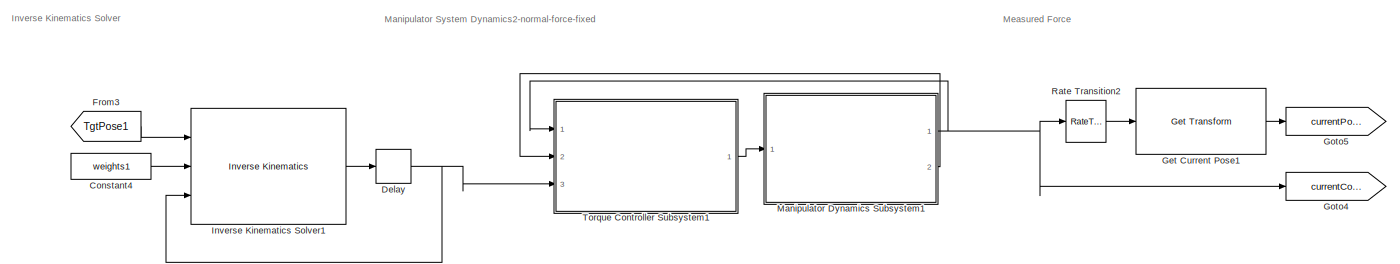
[diagram: root canvas - part 1/3, top right region]
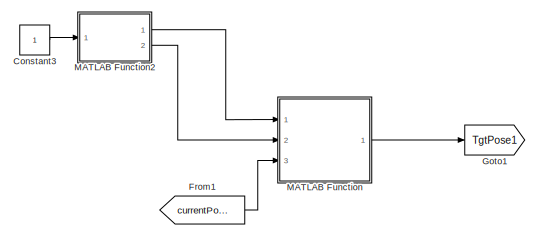
[diagram: root canvas - part 2/3, middle left region]
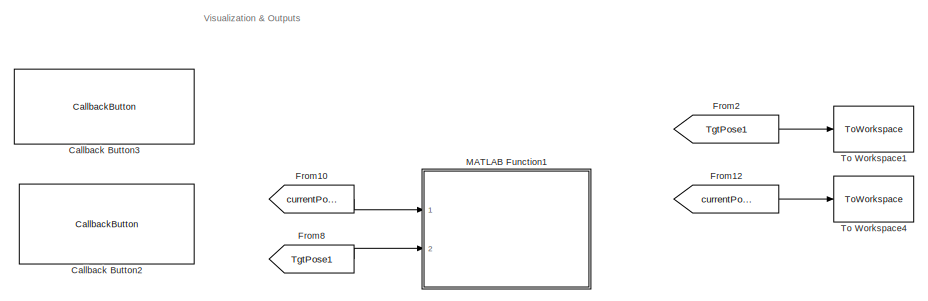
[diagram: root canvas - part 3/3, bottom center region]
MODEL slx_4688b18ca03d
KIND model
CONFIG AbsTol = auto
CONFIG EnableMultiTasking = off
CONFIG FixedStep = Ts
CONFIG MaxStep = auto
CONFIG MinStep = auto
CONFIG PostLoadFcn = robot=importrobot('demo.urdf');\nrobot.DataFormat = 'column';\n\nI = imread('coins.png');\nimageOrigin = [40,20,0.08];\nscale = .15;\n
CONFIG RelTol = 1e-3
CONFIG SampleTimeConstraint = Unconstrained
CONFIG Solver = ode3
CONFIG SolverName = ode3
CONFIG StartTime = 0.0
CONFIG StopTime = 10
WORKSPACE source: mxarray member
WORKSPACE I = [49 47 48 48 48 48 48 51 50 51 50 47 ... (73800 elements, 246x300)]
WORKSPACE Ts = 0.01
WORKSPACE filterConst = 0.08
WORKSPACE force_range = [0.8 0.9]
WORKSPACE imageOrigin = [0.4 0.2 0.08]
WORKSPACE initTargetPose = [-1 0 -1.22464679915e-16 0 0 1 0 0 1.22464679915e-16 0 -1 0 ... (16 elements, 4x4)]
WORKSPACE q0 = [0.422405030154 0 -1.22880122285 0]
WORKSPACE robot: robotics.RigidBodyTree (value not decoded)
WORKSPACE scale = 0.0015
WORKSPACE wayPoints = [0 0 0 0 0 0 0 0 0 0 0 0 ... (1212 elements, 202x6)]
WORKSPACE weights = [1 1 1 1]
WORKSPACE weights1 = [1 1 1 1 1 1]
BLOCK [CallbackButton] Callback Button2
  ButtonText = Show Image Processing Used for Waypoint Generation
  ClickFcn = f1 = figure(1);\nf1.Position = [158 253 953 335];\nI1 = imread('coins.png');\nI2 = imread('coinBoundaries.png');\n\nsubplot(1,2,1)\nimshow(I1, 'Border', 'tight')\ntitle('Original Image')\n\nsubplot(1,2,2)\nimshow(I2, 'Border', 'tight')\ntitle('Processed Image with Boundary Detection')
BLOCK [CallbackButton] Callback Button3
  ButtonText = Visualize Model Output with Manipulator Mesh
  ClickFcn = if exist('jointData1', 'var') \n    exampleHelperVisualizeIK(I, jointData1, poseData1, sawyer, imageOrigin, scale);\nelse\n    sim(gcs)\n    exampleHelperVisualizeIK(I, jointData1, poseData1, sawyer, imageOrigin, scale);\nend
BLOCK [Constant] Constant3
BLOCK [Constant] Constant4
  Value = weights1
BLOCK [Delay] Delay
  DelayLength = 1
  InitialCondition = 0
  InputPortMap = u0
  Ports = [1, 1]
BLOCK [From] From1
  GotoTag = currentPose1
BLOCK [From] From10
  GotoTag = currentPose1
BLOCK [From] From12
  GotoTag = currentPose1
BLOCK [From] From2
  GotoTag = TgtPose1
  TagVisibility = global
BLOCK [From] From3
  GotoTag = TgtPose1
  TagVisibility = global
BLOCK [From] From8
  GotoTag = TgtPose1
  TagVisibility = global
BLOCK [Reference] Get Current Pose1  REF=robotmaniplib/Get Transform
  Ports = [1, 1]
  SourceBlock = robotmaniplib/Get Transform
  SourceProductBaseCode = RO
  SourceProductName = Robotics System Toolbox
  SourceType = Get Transform
BLOCK [Goto] Goto1
  GotoTag = TgtPose1
  TagVisibility = global
BLOCK [Goto] Goto4
  GotoTag = currentConfig1
BLOCK [Goto] Goto5
  GotoTag = currentPose1
BLOCK [Reference] Inverse Kinematics Solver1  REF=robotmaniplib/Inverse Kinematics
  Ports = [3, 1]
  SourceBlock = robotmaniplib/Inverse Kinematics
  SourceProductBaseCode = RO
  SourceProductName = Robotics System Toolbox
  SourceType = Inverse Kinematics
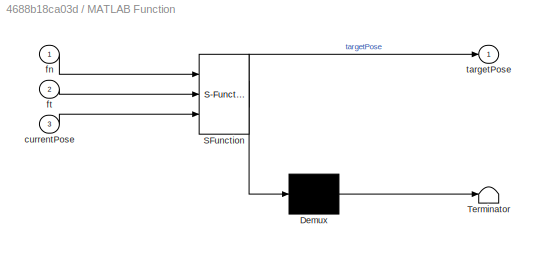
BLOCK [SubSystem] MATLAB Function
  ErrorFcn = Stateflow.Translate.translate
  PermitHierarchicalResolution = ExplicitOnly
  Ports = [3, 1]
  RequestExecContextInheritance = off
  SFBlockType = MATLAB Function
  TreatAsAtomicUnit = on
BLOCK [Demux] MATLAB Function/ Demux 
  Outputs = 1
  Ports = [1, 1]
BLOCK [S-Function] MATLAB Function/ SFunction 
  EnableBusSupport = on
  FunctionName = sf_sfun
  PortCounts = [3 2]
  Ports = [3, 2]
  SFcnIsStateOwnerBlock = off
  SFunctionDeploymentMode = off
  Tag = Stateflow S-Function 2
BLOCK [Terminator] MATLAB Function/ Terminator 
BLOCK [Inport] MATLAB Function/currentPose
  IconDisplay = Port number
  Port = 3
BLOCK [Inport] MATLAB Function/fn
  IconDisplay = Port number
BLOCK [Inport] MATLAB Function/ft
  IconDisplay = Port number
  Port = 2
BLOCK [Outport] MATLAB Function/targetPose
  IconDisplay = Port number
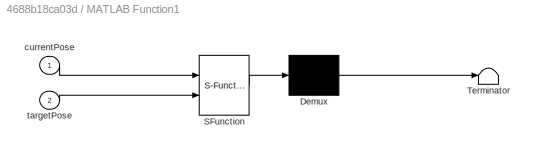
BLOCK [SubSystem] MATLAB Function1
  ErrorFcn = Stateflow.Translate.translate
  PermitHierarchicalResolution = ExplicitOnly
  Ports = [2]
  RequestExecContextInheritance = off
  SFBlockType = MATLAB Function
  SystemSampleTime = .1
  TreatAsAtomicUnit = on
BLOCK [Demux] MATLAB Function1/ Demux 
  Outputs = 1
  Ports = [1, 1]
BLOCK [S-Function] MATLAB Function1/ SFunction 
  EnableBusSupport = on
  FunctionName = sf_sfun
  PortCounts = [2 1]
  Ports = [2, 1]
  SFcnIsStateOwnerBlock = off
  SFunctionDeploymentMode = off
  Tag = Stateflow S-Function 4
BLOCK [Terminator] MATLAB Function1/ Terminator 
BLOCK [Inport] MATLAB Function1/currentPose
  IconDisplay = Port number
BLOCK [Inport] MATLAB Function1/targetPose
  IconDisplay = Port number
  Port = 2
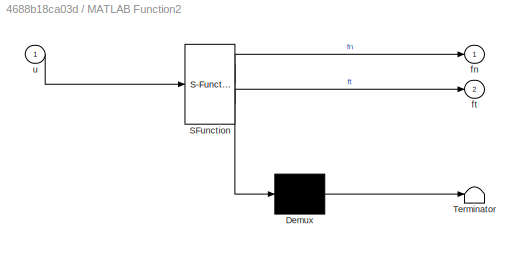
BLOCK [SubSystem] MATLAB Function2
  ErrorFcn = Stateflow.Translate.translate
  PermitHierarchicalResolution = ExplicitOnly
  Ports = [1, 2]
  RequestExecContextInheritance = off
  SFBlockType = MATLAB Function
  TreatAsAtomicUnit = on
BLOCK [Demux] MATLAB Function2/ Demux 
  Outputs = 1
  Ports = [1, 1]
BLOCK [S-Function] MATLAB Function2/ SFunction 
  EnableBusSupport = on
  FunctionName = sf_sfun
  PortCounts = [1 3]
  Ports = [1, 3]
  SFcnIsStateOwnerBlock = off
  SFunctionDeploymentMode = off
  Tag = Stateflow S-Function 1
BLOCK [Terminator] MATLAB Function2/ Terminator 
BLOCK [Outport] MATLAB Function2/fn
  IconDisplay = Port number
  VectorParamsAs1DForOutWhenUnconnected = off
BLOCK [Outport] MATLAB Function2/ft
  IconDisplay = Port number
  Port = 2
BLOCK [Inport] MATLAB Function2/u
  IconDisplay = Port number
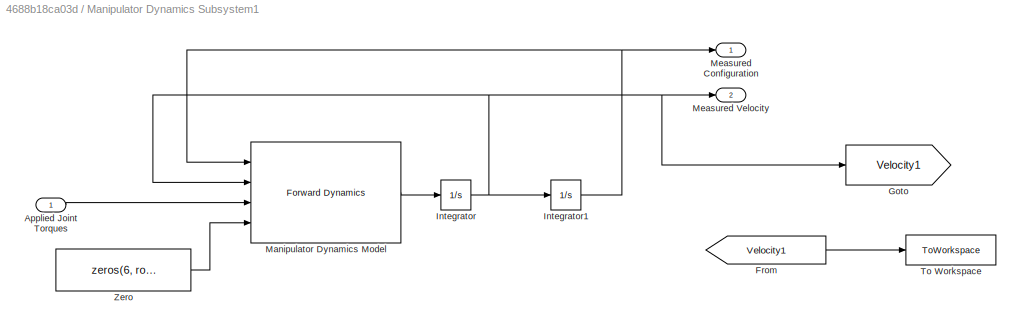
BLOCK [SubSystem] Manipulator Dynamics Subsystem1
  Ports = [1, 2]
  RequestExecContextInheritance = off
BLOCK [Inport] Manipulator Dynamics Subsystem1/Applied Joint Torques
  IconDisplay = Port number
BLOCK [From] Manipulator Dynamics Subsystem1/From
  GotoTag = Velocity1
BLOCK [Goto] Manipulator Dynamics Subsystem1/Goto
  GotoTag = Velocity1
BLOCK [Integrator] Manipulator Dynamics Subsystem1/Integrator
  Ports = [1, 1]
BLOCK [Integrator] Manipulator Dynamics Subsystem1/Integrator1
  InitialCondition = q0
  Ports = [1, 1]
BLOCK [Reference] Manipulator Dynamics Subsystem1/Manipulator Dynamics Model  REF=robotmaniplib/Forward Dynamics
  Ports = [4, 1]
  SourceBlock = robotmaniplib/Forward Dynamics
  SourceProductBaseCode = RO
  SourceProductName = Robotics System Toolbox
  SourceType = Forward Dynamics
BLOCK [Outport] Manipulator Dynamics Subsystem1/Measured Configuration
  IconDisplay = Port number
  VectorParamsAs1DForOutWhenUnconnected = off
BLOCK [Outport] Manipulator Dynamics Subsystem1/Measured Velocity
  IconDisplay = Port number
  Port = 2
  VectorParamsAs1DForOutWhenUnconnected = off
BLOCK [ToWorkspace] Manipulator Dynamics Subsystem1/To Workspace
  FixptAsFi = on
  MaxDataPoints = inf
  Ports = [1]
  SampleTime = -1
  SaveFormat = Timeseries
  VariableName = Velocity
BLOCK [Constant] Manipulator Dynamics Subsystem1/Zero
  OutDataTypeStr = Inherit: Inherit via back propagation
  Value = zeros(6, robot.NumBodies)
BLOCK [RateTransition] Rate Transition2
BLOCK [ToWorkspace] To Workspace1
  FixptAsFi = on
  MaxDataPoints = inf
  Ports = [1]
  SampleTime = -1
  VariableName = poseData2
BLOCK [ToWorkspace] To Workspace4
  FixptAsFi = on
  MaxDataPoints = inf
  Ports = [1]
  SampleTime = -1
  VariableName = poseData1
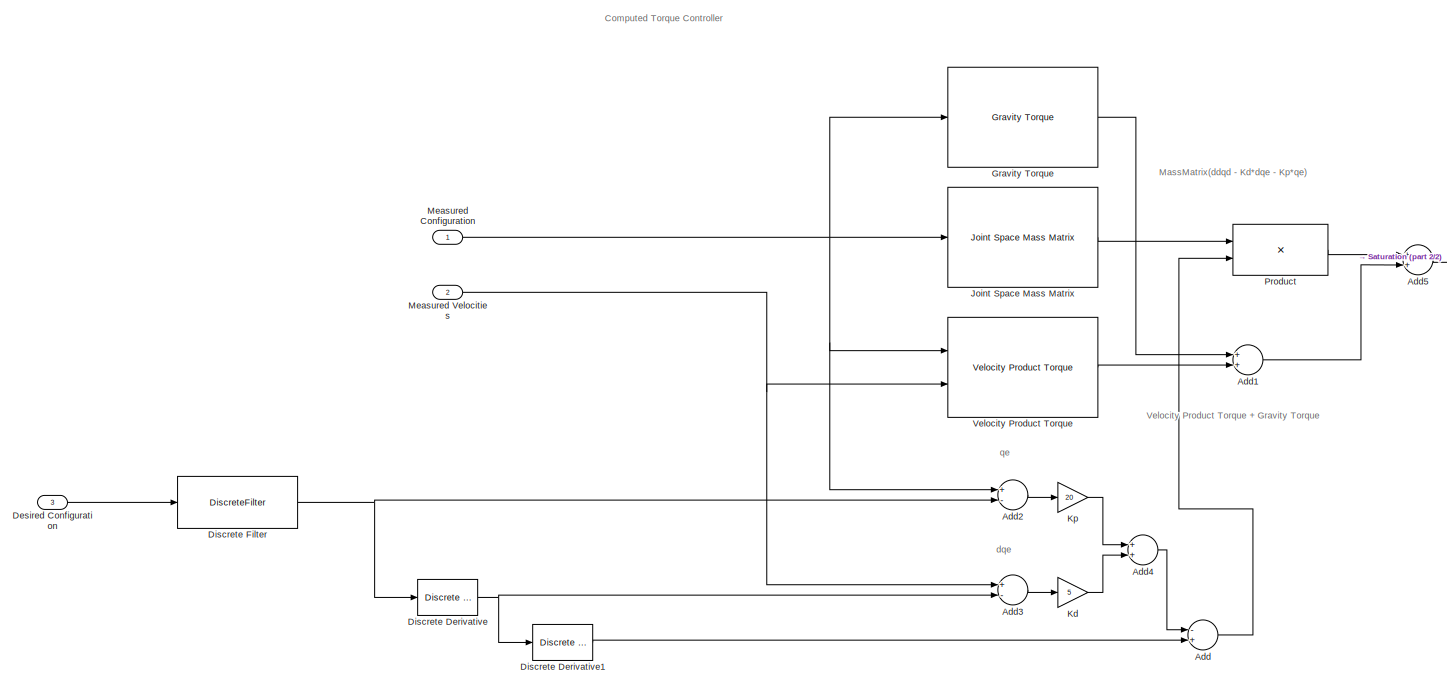
[diagram: Torque Controller Subsystem1 - part 1/2, most of the canvas]
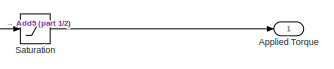
[diagram: Torque Controller Subsystem1 - part 2/2, middle right region]
BLOCK [SubSystem] Torque Controller Subsystem1
  Ports = [3, 1]
  RequestExecContextInheritance = off
BLOCK [Sum] Torque Controller Subsystem1/Add
  InputSameDT = off
  Inputs = -+
  OutDataTypeStr = Inherit: Inherit via internal rule
  Ports = [2, 1]
  SaturateOnIntegerOverflow = off
BLOCK [Sum] Torque Controller Subsystem1/Add1
  InputSameDT = off
  OutDataTypeStr = Inherit: Inherit via internal rule
  Ports = [2, 1]
  SaturateOnIntegerOverflow = off
BLOCK [Sum] Torque Controller Subsystem1/Add2
  InputSameDT = off
  Inputs = +-
  OutDataTypeStr = Inherit: Inherit via internal rule
  Ports = [2, 1]
  SaturateOnIntegerOverflow = off
BLOCK [Sum] Torque Controller Subsystem1/Add3
  InputSameDT = off
  Inputs = +-
  OutDataTypeStr = Inherit: Inherit via internal rule
  Ports = [2, 1]
  SaturateOnIntegerOverflow = off
BLOCK [Sum] Torque Controller Subsystem1/Add4
  InputSameDT = off
  OutDataTypeStr = Inherit: Inherit via internal rule
  Ports = [2, 1]
  SaturateOnIntegerOverflow = off
BLOCK [Sum] Torque Controller Subsystem1/Add5
  InputSameDT = off
  OutDataTypeStr = Inherit: Inherit via internal rule
  Ports = [2, 1]
  SaturateOnIntegerOverflow = off
BLOCK [Outport] Torque Controller Subsystem1/Applied Torque
  IconDisplay = Port number
  VectorParamsAs1DForOutWhenUnconnected = off
BLOCK [Inport] Torque Controller Subsystem1/Desired Configuration
  IconDisplay = Port number
  Port = 3
BLOCK [Reference] Torque Controller Subsystem1/Discrete Derivative  REF=simulink/Discrete/Discrete Derivative
  Ports = [1, 1]
  SourceBlock = simulink/Discrete/Discrete Derivative
  SourceProductBaseCode = SL
  SourceProductName = Simulink
  SourceType = Discrete Derivative
BLOCK [Reference] Torque Controller Subsystem1/Discrete Derivative1  REF=simulink/Discrete/Discrete Derivative
  Ports = [1, 1]
  SourceBlock = simulink/Discrete/Discrete Derivative
  SourceProductBaseCode = SL
  SourceProductName = Simulink
  SourceType = Discrete Derivative
BLOCK [DiscreteFilter] Torque Controller Subsystem1/Discrete Filter
  Denominator = [1]
  InitialStates = repmat(q0',19,1)
  InputPortMap = u0
  Numerator = ones(1,20)*1/20
  Ports = [1, 1]
BLOCK [Reference] Torque Controller Subsystem1/Gravity Torque  REF=robotmaniplib/Gravity Torque
  Ports = [1, 1]
  SourceBlock = robotmaniplib/Gravity Torque
  SourceProductBaseCode = RO
  SourceProductName = Robotics System Toolbox
  SourceType = Gravity Torque
BLOCK [Reference] Torque Controller Subsystem1/Joint Space Mass Matrix  REF=robotmaniplib/Joint Space Mass Matrix
  Ports = [1, 1]
  SourceBlock = robotmaniplib/Joint Space Mass Matrix
  SourceProductBaseCode = RO
  SourceProductName = Robotics System Toolbox
  SourceType = Joint Space Mass Matrix
BLOCK [Gain] Torque Controller Subsystem1/Kd
  Gain = 5
  OutDataTypeStr = Inherit: Inherit via internal rule
  ParamDataTypeStr = Inherit: Inherit via internal rule
  SaturateOnIntegerOverflow = off
BLOCK [Gain] Torque Controller Subsystem1/Kp
  Gain = 20
  OutDataTypeStr = Inherit: Inherit via internal rule
  ParamDataTypeStr = Inherit: Inherit via internal rule
  SaturateOnIntegerOverflow = off
BLOCK [Inport] Torque Controller Subsystem1/Measured Configuration
  IconDisplay = Port number
BLOCK [Inport] Torque Controller Subsystem1/Measured Velocities
  IconDisplay = Port number
  Port = 2
BLOCK [Product] Torque Controller Subsystem1/Product
  InputSameDT = off
  Multiplication = Matrix(*)
  OutDataTypeStr = Inherit: Inherit via internal rule
  Ports = [2, 1]
  RndMeth = Floor
  SaturateOnIntegerOverflow = off
BLOCK [Saturate] Torque Controller Subsystem1/Saturation
  InputPortMap = u0
  LowerLimit = -100
  Ports = [1, 1]
  UpperLimit = 100
BLOCK [Reference] Torque Controller Subsystem1/Velocity Product Torque  REF=robotmaniplib/Velocity Product Torque
  Ports = [2, 1]
  SourceBlock = robotmaniplib/Velocity Product Torque
  SourceProductBaseCode = RO
  SourceProductName = Robotics System Toolbox
  SourceType = Velocity Product Torque
ANNOTATION (root): Inverse Kinematics Solver
ANNOTATION (root): Manipulator System Dynamics2-normal-force-fixed
ANNOTATION (root): Measured Force
ANNOTATION (root): Visualization & Outputs
ANNOTATION Torque Controller Subsystem1: qe
ANNOTATION Torque Controller Subsystem1: dqe
ANNOTATION Torque Controller Subsystem1: MassMatrix(ddqd - Kd*dqe - Kp*qe)
ANNOTATION Torque Controller Subsystem1: Velocity Product Torque + Gravity Torque
ANNOTATION Torque Controller Subsystem1: Computed Torque Controller
LINE Constant3:1 -> MATLAB Function2:1
LINE Constant4:1 -> Inverse Kinematics Solver1:2
NET Delay:1 -> Inverse Kinematics Solver1:3, Torque Controller Subsystem1:3
LINE From10:1 -> MATLAB Function1:1
LINE From12:1 -> To Workspace4:1
LINE From1:1 -> MATLAB Function:3
LINE From2:1 -> To Workspace1:1
LINE From3:1 -> Inverse Kinematics Solver1:1
LINE From8:1 -> MATLAB Function1:2
LINE Get Current Pose1:1 -> Goto5:1
LINE Inverse Kinematics Solver1:1 -> Delay:1
LINE MATLAB Function2:1 -> MATLAB Function:1
LINE MATLAB Function2:2 -> MATLAB Function:2
LINE MATLAB Function:1 -> Goto1:1
LINE Manipulator Dynamics Subsystem1/Applied Joint Torques:1 -> Manipulator Dynamics Subsystem1/Manipulator Dynamics Model:3
LINE Manipulator Dynamics Subsystem1/From:1 -> Manipulator Dynamics Subsystem1/To Workspace:1
NET Manipulator Dynamics Subsystem1/Integrator1:1 -> Manipulator Dynamics Subsystem1/Manipulator Dynamics Model:1, Manipulator Dynamics Subsystem1/Measured Configuration:1
NET Manipulator Dynamics Subsystem1/Integrator:1 -> Manipulator Dynamics Subsystem1/Goto:1, Manipulator Dynamics Subsystem1/Integrator1:1, Manipulator Dynamics Subsystem1/Manipulator Dynamics Model:2, Manipulator Dynamics Subsystem1/Measured Velocity:1
LINE Manipulator Dynamics Subsystem1/Manipulator Dynamics Model:1 -> Manipulator Dynamics Subsystem1/Integrator:1
LINE Manipulator Dynamics Subsystem1/Zero:1 -> Manipulator Dynamics Subsystem1/Manipulator Dynamics Model:4
NET Manipulator Dynamics Subsystem1:1 -> Goto4:1, Rate Transition2:1, Torque Controller Subsystem1:1
LINE Manipulator Dynamics Subsystem1:2 -> Torque Controller Subsystem1:2
LINE Rate Transition2:1 -> Get Current Pose1:1
LINE Torque Controller Subsystem1/Add1:1 -> Torque Controller Subsystem1/Add5:2
LINE Torque Controller Subsystem1/Add2:1 -> Torque Controller Subsystem1/Kp:1
LINE Torque Controller Subsystem1/Add3:1 -> Torque Controller Subsystem1/Kd:1
LINE Torque Controller Subsystem1/Add4:1 -> Torque Controller Subsystem1/Add:1
LINE Torque Controller Subsystem1/Add5:1 -> Torque Controller Subsystem1/Saturation:1
LINE Torque Controller Subsystem1/Add:1 -> Torque Controller Subsystem1/Product:2
LINE Torque Controller Subsystem1/Desired Configuration:1 -> Torque Controller Subsystem1/Discrete Filter:1
LINE Torque Controller Subsystem1/Discrete Derivative1:1 -> Torque Controller Subsystem1/Add:2
NET Torque Controller Subsystem1/Discrete Derivative:1 -> Torque Controller Subsystem1/Add3:2, Torque Controller Subsystem1/Discrete Derivative1:1
NET Torque Controller Subsystem1/Discrete Filter:1 -> Torque Controller Subsystem1/Add2:2, Torque Controller Subsystem1/Discrete Derivative:1
LINE Torque Controller Subsystem1/Gravity Torque:1 -> Torque Controller Subsystem1/Add1:1
LINE Torque Controller Subsystem1/Joint Space Mass Matrix:1 -> Torque Controller Subsystem1/Product:1
LINE Torque Controller Subsystem1/Kd:1 -> Torque Controller Subsystem1/Add4:2
LINE Torque Controller Subsystem1/Kp:1 -> Torque Controller Subsystem1/Add4:1
NET Torque Controller Subsystem1/Measured Configuration:1 -> Torque Controller Subsystem1/Add2:1, Torque Controller Subsystem1/Gravity Torque:1, Torque Controller Subsystem1/Joint Space Mass Matrix:1, Torque Controller Subsystem1/Velocity Product Torque:1
NET Torque Controller Subsystem1/Measured Velocities:1 -> Torque Controller Subsystem1/Add3:1, Torque Controller Subsystem1/Velocity Product Torque:2
LINE Torque Controller Subsystem1/Product:1 -> Torque Controller Subsystem1/Add5:1
LINE Torque Controller Subsystem1/Saturation:1 -> Torque Controller Subsystem1/Applied Torque:1
LINE Torque Controller Subsystem1/Velocity Product Torque:1 -> Torque Controller Subsystem1/Add1:2
LINE Torque Controller Subsystem1:1 -> Manipulator Dynamics Subsystem1:1
note: NET lines group one-source signal fan-out (src -> all destinations, sorted); 1:1 wires keep LINE
CHART MATLAB Function2 states=1 transitions=1
  STATE_LABEL 'eML_blk_kernel()'
  STATE_LABEL 'SCRIPT:\nfunction [fn,ft] = fcn(u)\n%#codegen\npoint = zeros(100,3);\nfn = zeros(100,3);\nft = zeros(100,3);\n\nfor i = 1 : 100\n    point(i,1) = 0;\n    point(i,2) = -1+0.02*i;\n    point(i,3) = sqrt(1-point(i,2)*point(i,2));\n    \n    fn(i,1) = 0;\n    fn(i,2) = 0-point(i,2);\n    fn(i,3) = 0-point(i,3);\n    ft(i,2:3) = fn(i,2:3)*[0  1\n                          -1 0];\n\nend\n\n% for i = 1 : 100\n%     point(i,1)...<+248ch>'
CHART MATLAB Function states=1 transitions=1
  STATE_LABEL 'eML_blk_kernel()'
  STATE_LABEL 'SCRIPT:\nfunction targetPose  = fcn(fn, ft, currentPose)  \n   \n   k = 0.01;\n%    targetPose = zeros(3,1);\n%    currentPose = zeros(3,1);\n   u = zeros(3,1);\n   q = zeros(3,1);\n   q = currentPose;\n   persistent i;\n   if isempty(i)\n      i = 1;\n   end\n\n%    if i == 1\n%        q = [0;-1;0];\n%    end\n   \n   f1 = normest(fn(i,:));\n   f2 = normest(ft(i,:));\n   if f1 < 0\n     u(1,1) = q(1,end)+k*fn(i,1)/f1...<+466ch>'
CHART MATLAB Function1 states=1 transitions=1
  STATE_LABEL 'eML_blk_kernel()'
  STATE_LABEL "SCRIPT:\nfunction waypointTracking(currentPose, targetPose)\n%#codegen\n\n% persistent f1 a1\n% \n% if isempty(f1)\n%     f1 = figure;\n%     title('Waypoint Tracking-force');\n%     a1 = axes;\n%     axis(a1, [-2,2, -2,2, -2,2]);\n%     set(f1, 'Visible', 'on');\n% end\n\ntargetPoint = targetPose(1:3,end);\ncurrentPoint = currentPose(1:3,end);\n\n\nplot3(targetPoint(1), targetPoint(2), targetPoint(3), 'go', 'Marke...<+104ch>"
